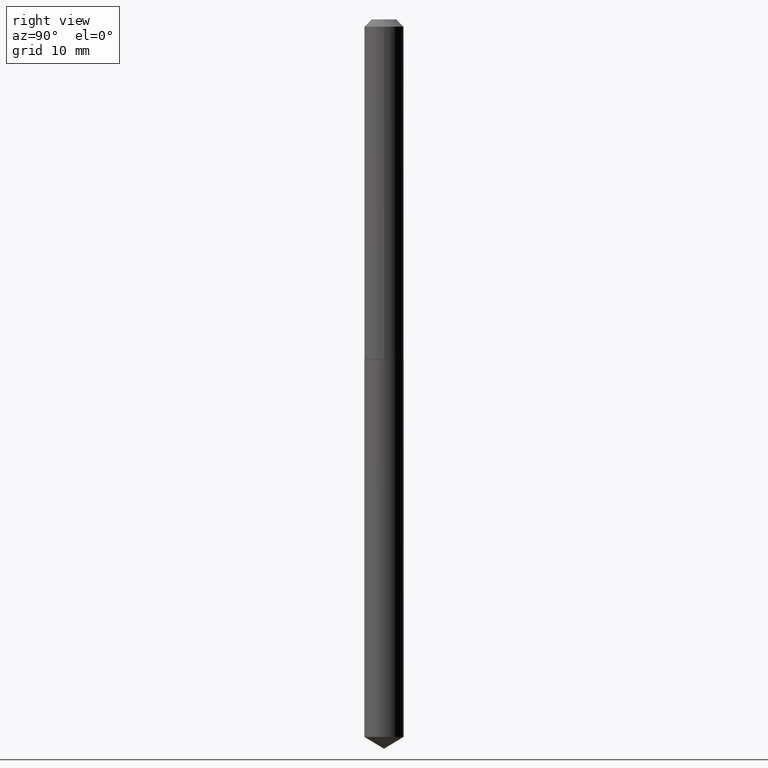
[diagram: clean part render]
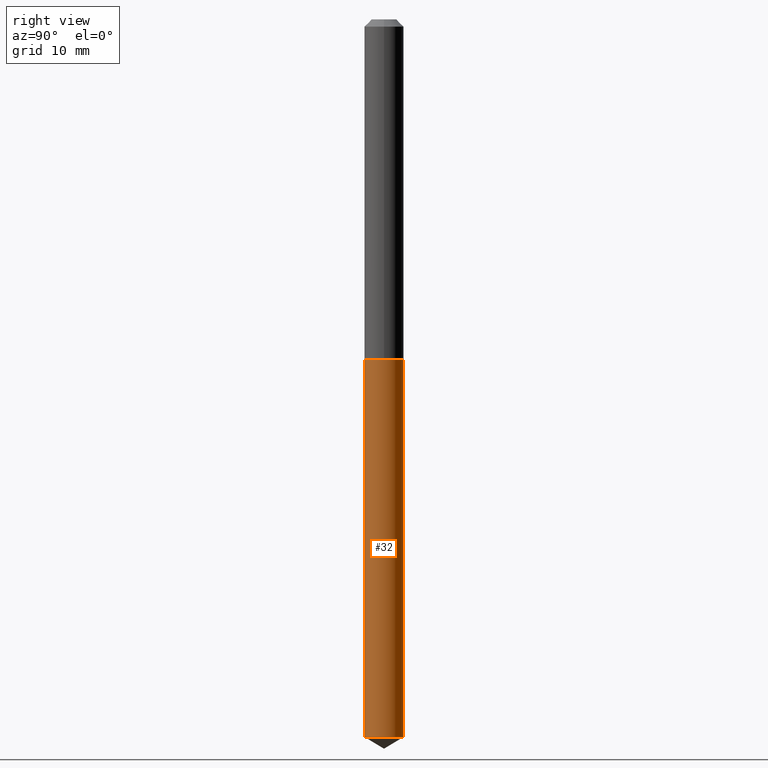
[diagram: same view with one face highlighted and labeled with its STEP entity id]
A machine part, right view. The second image highlights one B-rep face of the part: STEP entity #32.
In plain terms, the highlighted cylindrical surface (edge-blend (fillet) strip) has radius 2.1501 mm, axis along (-0, 0, 1).
Its self-contained STEP definition (entity closure, byte-faithful):
#7 = ORIENTED_EDGE ( 'NONE', *, *, #226, .F. ) ;
#11 = AXIS2_PLACEMENT_3D ( 'NONE', #224, #194, #311 ) ;
#20 = EDGE_CURVE ( 'NONE', #183, #112, #276, .T. ) ;
#22 = LINE ( 'NONE', #82, #249 ) ;
#29 = ORIENTED_EDGE ( 'NONE', *, *, #20, .F. ) ;
#32 = ADVANCED_FACE ( 'NONE', ( #95 ), #303, .T. ) ;
#53 = CIRCLE ( 'NONE', #11, 0.08465000000000001690 ) ;
#54 = DIRECTION ( 'NONE',  ( -2.445467556572018485E-29, 3.491483128360254312E-15, 1.000000000000000000 ) ) ;
#82 = CARTESIAN_POINT ( 'NONE',  ( 6.014744258209607220E-16, 0.08464999999999488212, -1.468500000000000361 ) ) ;
#83 = VERTEX_POINT ( 'NONE', #216 ) ;
#94 = DIRECTION ( 'NONE',  ( -2.445467556572018485E-29, 3.491483128360254312E-15, 1.000000000000000000 ) ) ;
#95 = FACE_OUTER_BOUND ( 'NONE', #317, .T. ) ;
#105 = DIRECTION ( 'NONE',  ( -2.445467556572018485E-29, 3.491483128360254707E-15, 1.000000000000000000 ) ) ;
#112 = VERTEX_POINT ( 'NONE', #125 ) ;
#125 = CARTESIAN_POINT ( 'NONE',  ( -5.911077906661066131E-16, -0.08465000000000513780, -1.468499999999999917 ) ) ;
#179 = AXIS2_PLACEMENT_3D ( 'NONE', #308, #54, #227 ) ;
#183 = VERTEX_POINT ( 'NONE', #254 ) ;
#194 = DIRECTION ( 'NONE',  ( -2.445467556572018485E-29, 3.491483128360254312E-15, 1.000000000000000000 ) ) ;
#195 = ORIENTED_EDGE ( 'NONE', *, *, #325, .T. ) ;
#216 = CARTESIAN_POINT ( 'NONE',  ( 6.014744258210007567E-16, 0.08464999999998920610, -3.098737148599317592 ) ) ;
#217 = EDGE_CURVE ( 'NONE', #183, #83, #380, .T. ) ;
#224 = CARTESIAN_POINT ( 'NONE',  ( 3.591170941882873536E-29, -5.127240346091159508E-15, -1.468500000000000139 ) ) ;
#226 = EDGE_CURVE ( 'NONE', #112, #321, #53, .T. ) ;
#227 = DIRECTION ( 'NONE',  ( -6.982962677686265922E-15, -1.000000000000000000, 6.454454798970496795E-15 ) ) ;
#245 = DIRECTION ( 'NONE',  ( -6.982962677686265922E-15, -1.000000000000000000, 3.227227399485248397E-15 ) ) ;
#247 = DIRECTION ( 'NONE',  ( -2.445467556572018485E-29, 3.491483128360254707E-15, 1.000000000000000000 ) ) ;
#249 = VECTOR ( 'NONE', #105, 39.37007874015748143 ) ;
#254 = CARTESIAN_POINT ( 'NONE',  ( -5.911077906660666770E-16, -0.08465000000001084157, -3.098737148599316260 ) ) ;
#258 = VECTOR ( 'NONE', #247, 39.37007874015748143 ) ;
#276 = LINE ( 'NONE', #279, #258 ) ;
#279 = CARTESIAN_POINT ( 'NONE',  ( -5.911077906661066131E-16, -0.08465000000000513780, -1.468499999999999917 ) ) ;
#303 = CYLINDRICAL_SURFACE ( 'NONE', #364, 0.08465000000000001690 ) ;
#308 = CARTESIAN_POINT ( 'NONE',  ( 7.577862998300978818E-29, -1.081918584565180318E-14, -3.098737148599316704 ) ) ;
#311 = DIRECTION ( 'NONE',  ( -6.982962677686265922E-15, -1.000000000000000000, 3.227227399485248397E-15 ) ) ;
#317 = EDGE_LOOP ( 'NONE', ( #350, #195, #7, #29 ) ) ;
#321 = VERTEX_POINT ( 'NONE', #379 ) ;
#325 = EDGE_CURVE ( 'NONE', #83, #321, #22, .T. ) ;
#350 = ORIENTED_EDGE ( 'NONE', *, *, #217, .T. ) ;
#363 = CARTESIAN_POINT ( 'NONE',  ( 3.591170941882873536E-29, -5.127240346091159508E-15, -1.468500000000000139 ) ) ;
#364 = AXIS2_PLACEMENT_3D ( 'NONE', #363, #94, #245 ) ;
#379 = CARTESIAN_POINT ( 'NONE',  ( 6.014744258210009539E-16, 0.08464999999999488212, -1.468500000000000361 ) ) ;
#380 = CIRCLE ( 'NONE', #179, 0.08465000000000001690 ) ;